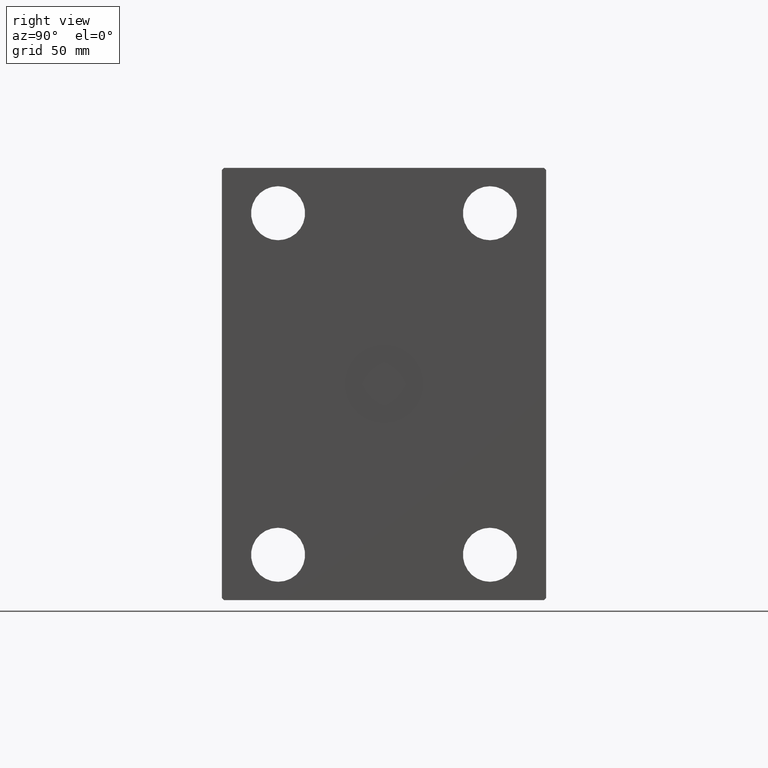
[diagram: clean part render]
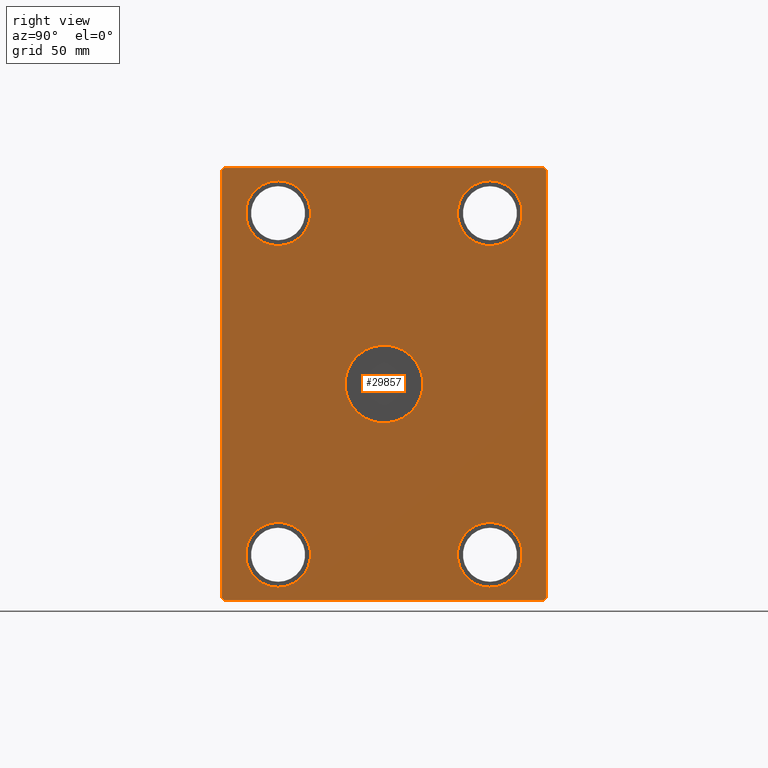
[diagram: same view with one face highlighted and labeled with its STEP entity id]
A machine part, right view. The second image highlights one B-rep face of the part: STEP entity #29857.
In plain terms, the highlighted planar face has unit normal (1, 0, 0).
Its self-contained STEP definition (entity closure, byte-faithful):
#417 = VERTEX_POINT ( 'NONE', #14783 ) ;
#495 = VECTOR ( 'NONE', #3650, 1000.000000000000000 ) ;
#1686 = CARTESIAN_POINT ( 'NONE',  ( 228.0000000000000000, 49.00000000000000711, -79.00000000000001421 ) ) ;
#1820 = AXIS2_PLACEMENT_3D ( 'NONE', #5590, #18897, #21923 ) ;
#1863 = VERTEX_POINT ( 'NONE', #41653 ) ;
#2607 = CIRCLE ( 'NONE', #12914, 15.00000000000000000 ) ;
#2746 = DIRECTION ( 'NONE',  ( -1.000000000000000000, -0.000000000000000000, -0.000000000000000000 ) ) ;
#2944 = CARTESIAN_POINT ( 'NONE',  ( 228.0000000000000000, 74.00000000000001421, -100.0000000000000426 ) ) ;
#3209 = DIRECTION ( 'NONE',  ( 0.000000000000000000, 1.401796748264086446E-16, -1.000000000000000000 ) ) ;
#3650 = DIRECTION ( 'NONE',  ( 0.000000000000000000, -1.000000000000000000, -9.376883653928687363E-17 ) ) ;
#3952 = ORIENTED_EDGE ( 'NONE', *, *, #14614, .T. ) ;
#4155 = CARTESIAN_POINT ( 'NONE',  ( 228.0000000000000000, -48.99999999999999289, -79.00000000000001421 ) ) ;
#4190 = DIRECTION ( 'NONE',  ( 0.000000000000000000, 0.000000000000000000, 1.000000000000000000 ) ) ;
#4781 = AXIS2_PLACEMENT_3D ( 'NONE', #38413, #8353, #40803 ) ;
#5097 = ORIENTED_EDGE ( 'NONE', *, *, #31483, .F. ) ;
#5590 = CARTESIAN_POINT ( 'NONE',  ( 228.0000000000000000, 49.00000000000000711, 79.00000000000001421 ) ) ;
#5796 = FACE_BOUND ( 'NONE', #20241, .T. ) ;
#5938 = VERTEX_POINT ( 'NONE', #39084 ) ;
#5951 = VERTEX_POINT ( 'NONE', #38234 ) ;
#5978 = EDGE_CURVE ( 'NONE', #36996, #37885, #22330, .T. ) ;
#6220 = CARTESIAN_POINT ( 'NONE',  ( 228.0000000000000000, 0.000000000000000000, 0.000000000000000000 ) ) ;
#6339 = AXIS2_PLACEMENT_3D ( 'NONE', #4155, #24123, #17247 ) ;
#7745 = DIRECTION ( 'NONE',  ( 0.000000000000000000, 0.000000000000000000, -1.000000000000000000 ) ) ;
#7971 = CARTESIAN_POINT ( 'NONE',  ( 228.0000000000000000, 0.000000000000000000, -18.00000000000000000 ) ) ;
#8353 = DIRECTION ( 'NONE',  ( 1.000000000000000000, -0.000000000000000000, -0.000000000000000000 ) ) ;
#8451 = CARTESIAN_POINT ( 'NONE',  ( 228.0000000000000000, 49.00000000000000711, 79.00000000000001421 ) ) ;
#8547 = AXIS2_PLACEMENT_3D ( 'NONE', #25107, #22076, #7745 ) ;
#8777 = DIRECTION ( 'NONE',  ( 0.000000000000000000, -0.7071067811865474617, 0.7071067811865474617 ) ) ;
#9404 = EDGE_CURVE ( 'NONE', #5951, #12834, #11419, .T. ) ;
#9864 = DIRECTION ( 'NONE',  ( 1.000000000000000000, 0.000000000000000000, 0.000000000000000000 ) ) ;
#10285 = EDGE_LOOP ( 'NONE', ( #36679, #31930 ) ) ;
#10313 = EDGE_LOOP ( 'NONE', ( #3952, #39835, #16095, #11233, #29755, #15319, #26333, #10489 ) ) ;
#10365 = ORIENTED_EDGE ( 'NONE', *, *, #19848, .F. ) ;
#10489 = ORIENTED_EDGE ( 'NONE', *, *, #19935, .T. ) ;
#10578 = EDGE_CURVE ( 'NONE', #33231, #34911, #41610, .T. ) ;
#10733 = AXIS2_PLACEMENT_3D ( 'NONE', #1686, #34752, #11776 ) ;
#10888 = DIRECTION ( 'NONE',  ( 0.000000000000000000, 0.000000000000000000, 1.000000000000000000 ) ) ;
#11012 = EDGE_CURVE ( 'NONE', #12834, #5951, #39599, .T. ) ;
#11052 = DIRECTION ( 'NONE',  ( 0.000000000000000000, 0.000000000000000000, -1.000000000000000000 ) ) ;
#11233 = ORIENTED_EDGE ( 'NONE', *, *, #19934, .T. ) ;
#11319 = DIRECTION ( 'NONE',  ( -1.000000000000000000, -0.000000000000000000, -0.000000000000000000 ) ) ;
#11419 = CIRCLE ( 'NONE', #1820, 15.00000000000000000 ) ;
#11776 = DIRECTION ( 'NONE',  ( 0.000000000000000000, 0.000000000000000000, 1.000000000000000000 ) ) ;
#11799 = ORIENTED_EDGE ( 'NONE', *, *, #10578, .T. ) ;
#12073 = VERTEX_POINT ( 'NONE', #21138 ) ;
#12461 = DIRECTION ( 'NONE',  ( 0.000000000000000000, 0.000000000000000000, -1.000000000000000000 ) ) ;
#12663 = ORIENTED_EDGE ( 'NONE', *, *, #40839, .T. ) ;
#12834 = VERTEX_POINT ( 'NONE', #24951 ) ;
#12844 = CARTESIAN_POINT ( 'NONE',  ( 228.0000000000000000, 49.00000000000000711, -79.00000000000001421 ) ) ;
#12914 = AXIS2_PLACEMENT_3D ( 'NONE', #30195, #27174, #4190 ) ;
#13024 = EDGE_LOOP ( 'NONE', ( #12663, #11799 ) ) ;
#13323 = LINE ( 'NONE', #19549, #495 ) ;
#13511 = AXIS2_PLACEMENT_3D ( 'NONE', #41167, #11319, #10888 ) ;
#13599 = ORIENTED_EDGE ( 'NONE', *, *, #14652, .F. ) ;
#13896 = CIRCLE ( 'NONE', #6339, 15.00000000000000000 ) ;
#14331 = LINE ( 'NONE', #23999, #31862 ) ;
#14614 = EDGE_CURVE ( 'NONE', #17187, #32964, #31558, .T. ) ;
#14652 = EDGE_CURVE ( 'NONE', #417, #38696, #23293, .T. ) ;
#14653 = VERTEX_POINT ( 'NONE', #21460 ) ;
#14783 = CARTESIAN_POINT ( 'NONE',  ( 228.0000000000000000, -48.99999999999999289, -64.00000000000001421 ) ) ;
#15245 = CARTESIAN_POINT ( 'NONE',  ( 228.0000000000000000, 74.00000000000001421, -100.0000000000000426 ) ) ;
#15319 = ORIENTED_EDGE ( 'NONE', *, *, #25514, .T. ) ;
#16011 = DIRECTION ( 'NONE',  ( 0.000000000000000000, 0.7071067811865474617, -0.7071067811865474617 ) ) ;
#16095 = ORIENTED_EDGE ( 'NONE', *, *, #20412, .T. ) ;
#16782 = EDGE_CURVE ( 'NONE', #34191, #5938, #36455, .T. ) ;
#16893 = CARTESIAN_POINT ( 'NONE',  ( 228.0000000000000000, 74.00000000000000000, 99.99999999999995737 ) ) ;
#17187 = VERTEX_POINT ( 'NONE', #22870 ) ;
#17247 = DIRECTION ( 'NONE',  ( 0.000000000000000000, 0.000000000000000000, -1.000000000000000000 ) ) ;
#17739 = DIRECTION ( 'NONE',  ( 0.000000000000000000, -0.7071067811865474617, -0.7071067811865474617 ) ) ;
#18037 = VECTOR ( 'NONE', #17739, 1000.000000000000114 ) ;
#18128 = DIRECTION ( 'NONE',  ( 1.000000000000000000, -0.000000000000000000, -0.000000000000000000 ) ) ;
#18641 = AXIS2_PLACEMENT_3D ( 'NONE', #12844, #2746, #25952 ) ;
#18897 = DIRECTION ( 'NONE',  ( 1.000000000000000000, -0.000000000000000000, -0.000000000000000000 ) ) ;
#19235 = CARTESIAN_POINT ( 'NONE',  ( 228.0000000000000000, -74.99999999999997158, -99.00000000000005684 ) ) ;
#19527 = DIRECTION ( 'NONE',  ( 0.000000000000000000, -7.008983741320432232E-17, 1.000000000000000000 ) ) ;
#19549 = CARTESIAN_POINT ( 'NONE',  ( 228.0000000000000000, 74.00000000000000000, 99.99999999999995737 ) ) ;
#19848 = EDGE_CURVE ( 'NONE', #38696, #417, #13896, .T. ) ;
#19934 = EDGE_CURVE ( 'NONE', #1863, #33577, #38065, .T. ) ;
#19935 = EDGE_CURVE ( 'NONE', #37885, #17187, #28197, .T. ) ;
#20241 = EDGE_LOOP ( 'NONE', ( #24450, #23713 ) ) ;
#20412 = EDGE_CURVE ( 'NONE', #35371, #1863, #27411, .T. ) ;
#20905 = CIRCLE ( 'NONE', #24357, 18.00000000000000000 ) ;
#21055 = EDGE_LOOP ( 'NONE', ( #41415, #5097 ) ) ;
#21138 = CARTESIAN_POINT ( 'NONE',  ( 228.0000000000000000, 2.204364238465235428E-15, 18.00000000000000000 ) ) ;
#21460 = CARTESIAN_POINT ( 'NONE',  ( 228.0000000000000000, -73.99999999999998579, -100.0000000000000426 ) ) ;
#21755 = CARTESIAN_POINT ( 'NONE',  ( 228.0000000000000000, -48.99999999999999289, 94.00000000000001421 ) ) ;
#21910 = DIRECTION ( 'NONE',  ( 0.000000000000000000, 0.7071067811865474617, 0.7071067811865474617 ) ) ;
#21923 = DIRECTION ( 'NONE',  ( 0.000000000000000000, 0.000000000000000000, -1.000000000000000000 ) ) ;
#22076 = DIRECTION ( 'NONE',  ( 1.000000000000000000, 0.000000000000000000, 0.000000000000000000 ) ) ;
#22138 = VECTOR ( 'NONE', #19527, 1000.000000000000000 ) ;
#22259 = AXIS2_PLACEMENT_3D ( 'NONE', #6220, #9864, #12461 ) ;
#22287 = CIRCLE ( 'NONE', #8547, 18.00000000000000000 ) ;
#22330 = LINE ( 'NONE', #15245, #24392 ) ;
#22339 = PLANE ( 'NONE',  #22259 ) ;
#22446 = AXIS2_PLACEMENT_3D ( 'NONE', #8451, #18128, #11052 ) ;
#22556 = FACE_BOUND ( 'NONE', #13024, .T. ) ;
#22870 = CARTESIAN_POINT ( 'NONE',  ( 228.0000000000000000, 75.00000000000000000, 98.99999999999995737 ) ) ;
#23293 = CIRCLE ( 'NONE', #4781, 15.00000000000000000 ) ;
#23713 = ORIENTED_EDGE ( 'NONE', *, *, #36817, .T. ) ;
#23999 = CARTESIAN_POINT ( 'NONE',  ( 228.0000000000000000, -73.99999999999998579, -100.0000000000000426 ) ) ;
#24123 = DIRECTION ( 'NONE',  ( 1.000000000000000000, -0.000000000000000000, -0.000000000000000000 ) ) ;
#24357 = AXIS2_PLACEMENT_3D ( 'NONE', #41355, #27631, #28065 ) ;
#24392 = VECTOR ( 'NONE', #21910, 1000.000000000000114 ) ;
#24450 = ORIENTED_EDGE ( 'NONE', *, *, #16782, .T. ) ;
#24618 = CARTESIAN_POINT ( 'NONE',  ( 228.0000000000000000, -74.00000000000000000, 99.99999999999994316 ) ) ;
#24951 = CARTESIAN_POINT ( 'NONE',  ( 228.0000000000000000, 49.00000000000000711, 64.00000000000001421 ) ) ;
#25107 = CARTESIAN_POINT ( 'NONE',  ( 228.0000000000000000, 0.000000000000000000, 0.000000000000000000 ) ) ;
#25514 = EDGE_CURVE ( 'NONE', #14653, #36996, #14331, .T. ) ;
#25786 = FACE_BOUND ( 'NONE', #37600, .T. ) ;
#25952 = DIRECTION ( 'NONE',  ( 0.000000000000000000, 0.000000000000000000, 1.000000000000000000 ) ) ;
#25988 = CARTESIAN_POINT ( 'NONE',  ( 228.0000000000000000, -75.00000000000000000, 98.99999999999994316 ) ) ;
#26209 = FACE_BOUND ( 'NONE', #21055, .T. ) ;
#26333 = ORIENTED_EDGE ( 'NONE', *, *, #5978, .T. ) ;
#27174 = DIRECTION ( 'NONE',  ( -1.000000000000000000, -0.000000000000000000, -0.000000000000000000 ) ) ;
#27411 = LINE ( 'NONE', #24618, #18037 ) ;
#27631 = DIRECTION ( 'NONE',  ( 1.000000000000000000, 0.000000000000000000, 0.000000000000000000 ) ) ;
#28065 = DIRECTION ( 'NONE',  ( 0.000000000000000000, 0.000000000000000000, -1.000000000000000000 ) ) ;
#28197 = LINE ( 'NONE', #39081, #22138 ) ;
#29755 = ORIENTED_EDGE ( 'NONE', *, *, #40700, .T. ) ;
#29857 = ADVANCED_FACE ( 'NONE', ( #26209, #22556, #5796, #39301, #25786, #38882 ), #22339, .T. ) ;
#30195 = CARTESIAN_POINT ( 'NONE',  ( 228.0000000000000000, -48.99999999999999289, 79.00000000000001421 ) ) ;
#30856 = EDGE_CURVE ( 'NONE', #31519, #12073, #20905, .T. ) ;
#31483 = EDGE_CURVE ( 'NONE', #12073, #31519, #22287, .T. ) ;
#31519 = VERTEX_POINT ( 'NONE', #7971 ) ;
#31558 = LINE ( 'NONE', #31973, #39731 ) ;
#31862 = VECTOR ( 'NONE', #39896, 1000.000000000000000 ) ;
#31930 = ORIENTED_EDGE ( 'NONE', *, *, #9404, .F. ) ;
#31973 = CARTESIAN_POINT ( 'NONE',  ( 228.0000000000000000, 75.00000000000000000, 98.99999999999995737 ) ) ;
#32008 = CIRCLE ( 'NONE', #10733, 15.00000000000000000 ) ;
#32964 = VERTEX_POINT ( 'NONE', #16893 ) ;
#33231 = VERTEX_POINT ( 'NONE', #21755 ) ;
#33427 = CARTESIAN_POINT ( 'NONE',  ( 228.0000000000000000, -74.99999999999997158, -99.00000000000005684 ) ) ;
#33577 = VERTEX_POINT ( 'NONE', #33427 ) ;
#34156 = VECTOR ( 'NONE', #16011, 1000.000000000000114 ) ;
#34191 = VERTEX_POINT ( 'NONE', #36122 ) ;
#34752 = DIRECTION ( 'NONE',  ( -1.000000000000000000, -0.000000000000000000, -0.000000000000000000 ) ) ;
#34911 = VERTEX_POINT ( 'NONE', #39579 ) ;
#35371 = VERTEX_POINT ( 'NONE', #38972 ) ;
#35839 = VECTOR ( 'NONE', #3209, 1000.000000000000000 ) ;
#35974 = LINE ( 'NONE', #19235, #34156 ) ;
#36122 = CARTESIAN_POINT ( 'NONE',  ( 228.0000000000000000, 49.00000000000000711, -94.00000000000001421 ) ) ;
#36316 = CARTESIAN_POINT ( 'NONE',  ( 228.0000000000000000, -48.99999999999999289, -94.00000000000001421 ) ) ;
#36455 = CIRCLE ( 'NONE', #18641, 15.00000000000000000 ) ;
#36679 = ORIENTED_EDGE ( 'NONE', *, *, #11012, .F. ) ;
#36817 = EDGE_CURVE ( 'NONE', #5938, #34191, #32008, .T. ) ;
#36996 = VERTEX_POINT ( 'NONE', #2944 ) ;
#37466 = EDGE_CURVE ( 'NONE', #32964, #35371, #13323, .T. ) ;
#37547 = CARTESIAN_POINT ( 'NONE',  ( 228.0000000000000000, 75.00000000000001421, -99.00000000000004263 ) ) ;
#37600 = EDGE_LOOP ( 'NONE', ( #10365, #13599 ) ) ;
#37885 = VERTEX_POINT ( 'NONE', #37547 ) ;
#38065 = LINE ( 'NONE', #25988, #35839 ) ;
#38234 = CARTESIAN_POINT ( 'NONE',  ( 228.0000000000000000, 49.00000000000000711, 94.00000000000001421 ) ) ;
#38413 = CARTESIAN_POINT ( 'NONE',  ( 228.0000000000000000, -48.99999999999999289, -79.00000000000001421 ) ) ;
#38696 = VERTEX_POINT ( 'NONE', #36316 ) ;
#38882 = FACE_BOUND ( 'NONE', #10285, .T. ) ;
#38972 = CARTESIAN_POINT ( 'NONE',  ( 228.0000000000000000, -74.00000000000000000, 99.99999999999994316 ) ) ;
#39081 = CARTESIAN_POINT ( 'NONE',  ( 228.0000000000000000, 75.00000000000001421, -99.00000000000004263 ) ) ;
#39084 = CARTESIAN_POINT ( 'NONE',  ( 228.0000000000000000, 49.00000000000000711, -64.00000000000001421 ) ) ;
#39301 = FACE_OUTER_BOUND ( 'NONE', #10313, .T. ) ;
#39579 = CARTESIAN_POINT ( 'NONE',  ( 228.0000000000000000, -48.99999999999999289, 64.00000000000001421 ) ) ;
#39599 = CIRCLE ( 'NONE', #22446, 15.00000000000000000 ) ;
#39731 = VECTOR ( 'NONE', #8777, 1000.000000000000114 ) ;
#39835 = ORIENTED_EDGE ( 'NONE', *, *, #37466, .T. ) ;
#39896 = DIRECTION ( 'NONE',  ( 0.000000000000000000, 1.000000000000000000, 0.000000000000000000 ) ) ;
#40700 = EDGE_CURVE ( 'NONE', #33577, #14653, #35974, .T. ) ;
#40803 = DIRECTION ( 'NONE',  ( 0.000000000000000000, 0.000000000000000000, -1.000000000000000000 ) ) ;
#40839 = EDGE_CURVE ( 'NONE', #34911, #33231, #2607, .T. ) ;
#41167 = CARTESIAN_POINT ( 'NONE',  ( 228.0000000000000000, -48.99999999999999289, 79.00000000000001421 ) ) ;
#41355 = CARTESIAN_POINT ( 'NONE',  ( 228.0000000000000000, 0.000000000000000000, 0.000000000000000000 ) ) ;
#41415 = ORIENTED_EDGE ( 'NONE', *, *, #30856, .F. ) ;
#41610 = CIRCLE ( 'NONE', #13511, 15.00000000000000000 ) ;
#41653 = CARTESIAN_POINT ( 'NONE',  ( 228.0000000000000000, -75.00000000000000000, 98.99999999999994316 ) ) ;